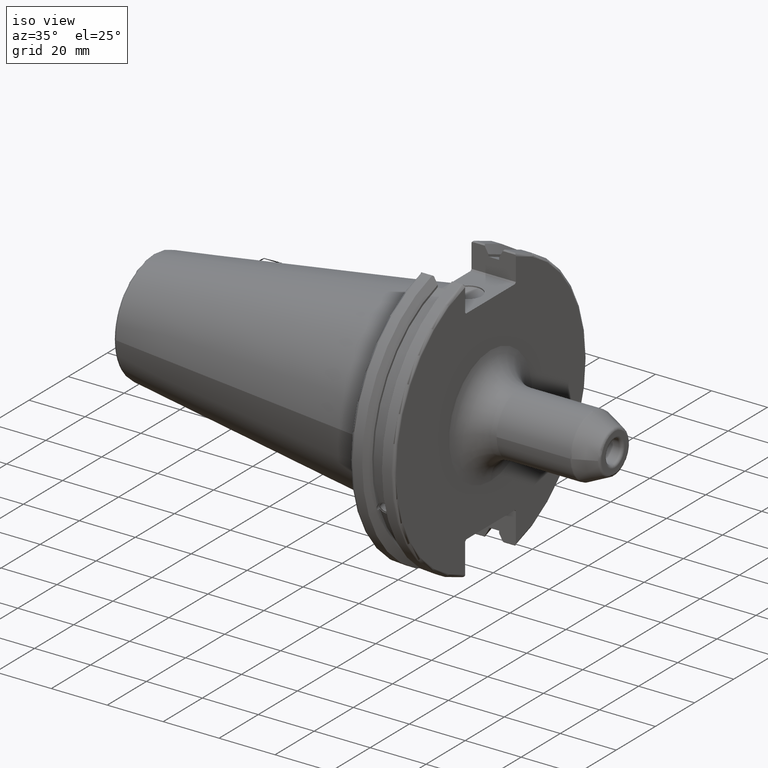
[diagram: clean part render]
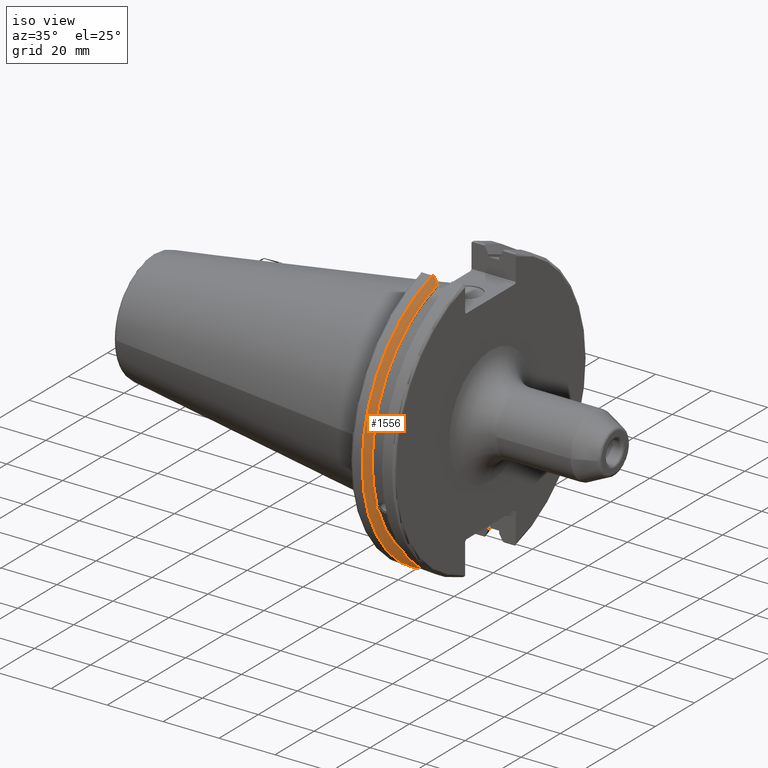
[diagram: same view with one face highlighted and labeled with its STEP entity id]
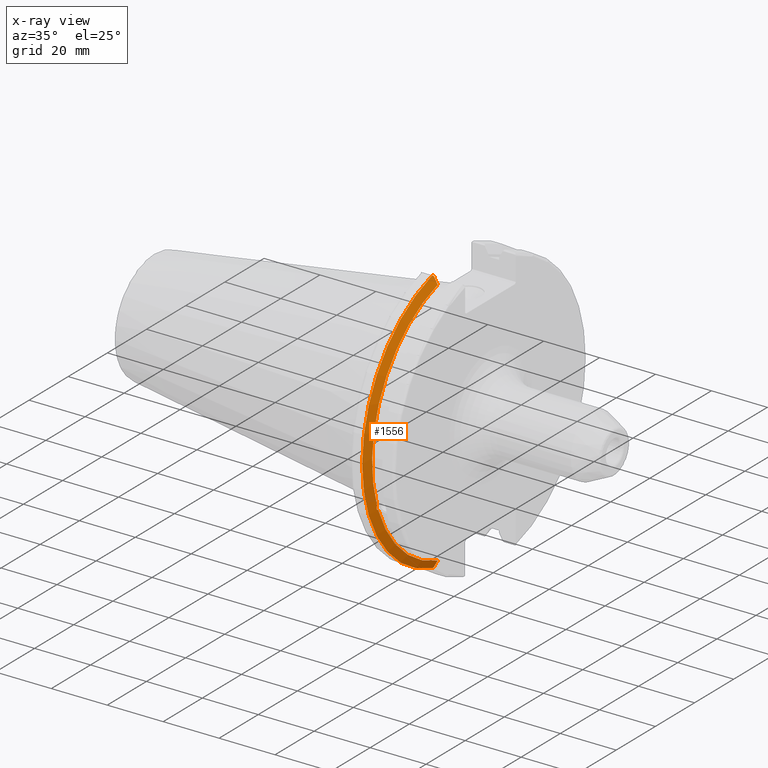
[diagram: x-ray of the same camera — body ghosted, the highlighted face saturated]
A machine part, iso view. The second image highlights one B-rep face of the part: STEP entity #1556.
The next image is the same camera in x-ray: the body ghosted, the highlighted face saturated — about 0% of this face is hidden behind the body in this view.
In plain terms, the highlighted conical surface has half-angle 60 deg.
Its self-contained STEP definition (entity closure, byte-faithful):
#24=(
BOUNDED_CURVE()
B_SPLINE_CURVE(2,(#3029,#3030,#3031),.UNSPECIFIED.,.F.,.F.)
B_SPLINE_CURVE_WITH_KNOTS((3,3),(0.,0.275823910673799),.UNSPECIFIED.)
CURVE()
GEOMETRIC_REPRESENTATION_ITEM()
RATIONAL_B_SPLINE_CURVE((1.,1.00038235574547,1.00012873636808))
REPRESENTATION_ITEM('')
);
#25=(
BOUNDED_CURVE()
B_SPLINE_CURVE(2,(#3041,#3042,#3043),.UNSPECIFIED.,.F.,.F.)
B_SPLINE_CURVE_WITH_KNOTS((3,3),(0.0558332664508419,0.331657177124507),
 .UNSPECIFIED.)
CURVE()
GEOMETRIC_REPRESENTATION_ITEM()
RATIONAL_B_SPLINE_CURVE((1.00012873636699,1.00038235574223,1.))
REPRESENTATION_ITEM('')
);
#26=(
BOUNDED_CURVE()
B_SPLINE_CURVE(2,(#3076,#3077,#3078),.UNSPECIFIED.,.F.,.F.)
B_SPLINE_CURVE_WITH_KNOTS((3,3),(0.,0.064824047289869),.UNSPECIFIED.)
CURVE()
GEOMETRIC_REPRESENTATION_ITEM()
RATIONAL_B_SPLINE_CURVE((1.,1.00011477674823,1.00019140645925))
REPRESENTATION_ITEM('')
);
#27=(
BOUNDED_CURVE()
B_SPLINE_CURVE(2,(#3084,#3085,#3086),.UNSPECIFIED.,.F.,.F.)
B_SPLINE_CURVE_WITH_KNOTS((3,3),(0.325260944932363,0.390084992222202),
 .UNSPECIFIED.)
CURVE()
GEOMETRIC_REPRESENTATION_ITEM()
RATIONAL_B_SPLINE_CURVE((1.00019140645909,1.00011477674813,1.))
REPRESENTATION_ITEM('')
);
#200=FACE_OUTER_BOUND('',#305,.T.);
#305=EDGE_LOOP('',(#1417,#1418,#1419,#1420,#1421,#1422,#1423,#1424));
#333=B_SPLINE_CURVE_WITH_KNOTS('',3,(#2563,#2564,#2565,#2566,#2567,#2568,
#2569,#2570,#2571,#2572,#2573,#2574,#2575,#2576),.UNSPECIFIED.,.F.,.F.,
(4,2,2,2,2,2,4),(0.426712868358719,0.441644498666907,0.480313313223131,
0.518982127779354,0.557650942335578,0.596319756891801,0.611251387199989),
 .UNSPECIFIED.);
#581=CIRCLE('',#1655,46.4219772964944);
#604=CIRCLE('',#1704,49.2125);
#616=CIRCLE('',#1739,46.4219772964944);
#672=VERTEX_POINT('',#2560);
#673=VERTEX_POINT('',#2562);
#691=VERTEX_POINT('',#2657);
#752=VERTEX_POINT('',#3026);
#753=VERTEX_POINT('',#3028);
#756=VERTEX_POINT('',#3040);
#760=VERTEX_POINT('',#3074);
#761=VERTEX_POINT('',#3080);
#841=EDGE_CURVE('',#673,#672,#333,.T.);
#866=EDGE_CURVE('',#673,#691,#581,.T.);
#948=EDGE_CURVE('',#753,#752,#24,.T.);
#954=EDGE_CURVE('',#756,#691,#25,.T.);
#962=EDGE_CURVE('',#760,#752,#26,.T.);
#964=EDGE_CURVE('',#760,#761,#604,.T.);
#965=EDGE_CURVE('',#756,#761,#27,.T.);
#998=EDGE_CURVE('',#753,#672,#616,.T.);
#1417=ORIENTED_EDGE('',*,*,#841,.T.);
#1418=ORIENTED_EDGE('',*,*,#998,.F.);
#1419=ORIENTED_EDGE('',*,*,#948,.T.);
#1420=ORIENTED_EDGE('',*,*,#962,.F.);
#1421=ORIENTED_EDGE('',*,*,#964,.T.);
#1422=ORIENTED_EDGE('',*,*,#965,.F.);
#1423=ORIENTED_EDGE('',*,*,#954,.T.);
#1424=ORIENTED_EDGE('',*,*,#866,.F.);
#1479=CONICAL_SURFACE('',#1738,47.8172386482472,1.0471975511966);
#1556=ADVANCED_FACE('',(#200),#1479,.T.);
#1655=AXIS2_PLACEMENT_3D('',#2658,#1917,#1918);
#1704=AXIS2_PLACEMENT_3D('',#3082,#2059,#2060);
#1738=AXIS2_PLACEMENT_3D('',#3179,#2142,#2143);
#1739=AXIS2_PLACEMENT_3D('',#3180,#2144,#2145);
#1917=DIRECTION('center_axis',(1.,0.,0.));
#1918=DIRECTION('ref_axis',(0.,0.,-1.));
#2059=DIRECTION('center_axis',(1.,0.,0.));
#2060=DIRECTION('ref_axis',(0.,0.,-1.));
#2142=DIRECTION('center_axis',(-1.,0.,0.));
#2143=DIRECTION('ref_axis',(0.,-1.,-1.22464679914735E-16));
#2144=DIRECTION('center_axis',(1.,0.,0.));
#2145=DIRECTION('ref_axis',(0.,0.,-1.));
#2560=CARTESIAN_POINT('',(9.2191,-43.9096390749305,-15.0646464421033));
#2562=CARTESIAN_POINT('',(9.2191,-43.3201030900029,-16.684383248648));
#2563=CARTESIAN_POINT('Ctrl Pts',(9.2191,-43.3201030900029,-16.6843832486479));
#2564=CARTESIAN_POINT('Ctrl Pts',(9.20211843903392,-43.3613106941341,-16.6592273018006));
#2565=CARTESIAN_POINT('Ctrl Pts',(9.18608675403322,-43.4012416983557,-16.6326763251437));
#2566=CARTESIAN_POINT('Ctrl Pts',(9.13238673845037,-43.5391037343221,-16.5325130832406));
#2567=CARTESIAN_POINT('Ctrl Pts',(9.09621610663555,-43.6406982153491,-16.4411807953719));
#2568=CARTESIAN_POINT('Ctrl Pts',(9.04690868251975,-43.8110833825827,-16.2291323464527));
#2569=CARTESIAN_POINT('Ctrl Pts',(9.0341,-43.8794096049168,-16.10796730316));
#2570=CARTESIAN_POINT('Ctrl Pts',(9.0341,-43.9675796948952,-15.8657219718732));
#2571=CARTESIAN_POINT('Ctrl Pts',(9.04690868251975,-43.9931221605125,-15.7289849146254));
#2572=CARTESIAN_POINT('Ctrl Pts',(9.09621610663555,-43.9989016655819,-15.4570249042868));
#2573=CARTESIAN_POINT('Ctrl Pts',(9.13238673845037,-43.9797830409458,-15.3217566390708));
#2574=CARTESIAN_POINT('Ctrl Pts',(9.18608675403322,-43.9385582852181,-15.1564111356409));
#2575=CARTESIAN_POINT('Ctrl Pts',(9.20211843903392,-43.9250360001461,-15.1104047527575));
#2576=CARTESIAN_POINT('Ctrl Pts',(9.2191,-43.9096390749305,-15.0646464421033));
#2657=CARTESIAN_POINT('',(9.2191,-12.95,-44.5791147973604));
#2658=CARTESIAN_POINT('Origin',(9.2191,0.,0.));
#3026=CARTESIAN_POINT('',(7.88638960562424,-12.95,46.9780755322918));
#3028=CARTESIAN_POINT('',(9.2191,-12.95,44.5791147973604));
#3029=CARTESIAN_POINT('Ctrl Pts',(9.2191,-12.95,44.5791147973604));
#3030=CARTESIAN_POINT('Ctrl Pts',(8.57020449054213,-12.95,45.7494966802443));
#3031=CARTESIAN_POINT('Ctrl Pts',(7.88638960562424,-12.95,46.9780755322918));
#3040=CARTESIAN_POINT('',(7.88638960562425,-12.95,-46.9780755322917));
#3041=CARTESIAN_POINT('Ctrl Pts',(7.88638960562425,-12.95,-46.9780755322917));
#3042=CARTESIAN_POINT('Ctrl Pts',(8.5702044905427,-12.95,-45.7494966802433));
#3043=CARTESIAN_POINT('Ctrl Pts',(9.2191,-12.95,-44.5791147973604));
#3074=CARTESIAN_POINT('',(7.60799096595127,-13.4317035994433,47.3440544806494));
#3076=CARTESIAN_POINT('Ctrl Pts',(7.60799096595127,-13.4317035994433,47.3440544806494));
#3077=CARTESIAN_POINT('Ctrl Pts',(7.74826896663813,-13.1896660169967,47.1601640966265));
#3078=CARTESIAN_POINT('Ctrl Pts',(7.88638960562424,-12.95,46.9780755322918));
#3080=CARTESIAN_POINT('',(7.60799096595127,-13.4317035994433,-47.3440544806494));
#3082=CARTESIAN_POINT('Origin',(7.60799096595127,0.,0.));
#3084=CARTESIAN_POINT('Ctrl Pts',(7.88638960562425,-12.95,-46.9780755322917));
#3085=CARTESIAN_POINT('Ctrl Pts',(7.74826896663813,-13.1896660169967,-47.1601640966265));
#3086=CARTESIAN_POINT('Ctrl Pts',(7.60799096595127,-13.4317035994433,-47.3440544806494));
#3179=CARTESIAN_POINT('Origin',(8.41354548297563,0.,0.));
#3180=CARTESIAN_POINT('Origin',(9.2191,0.,0.));